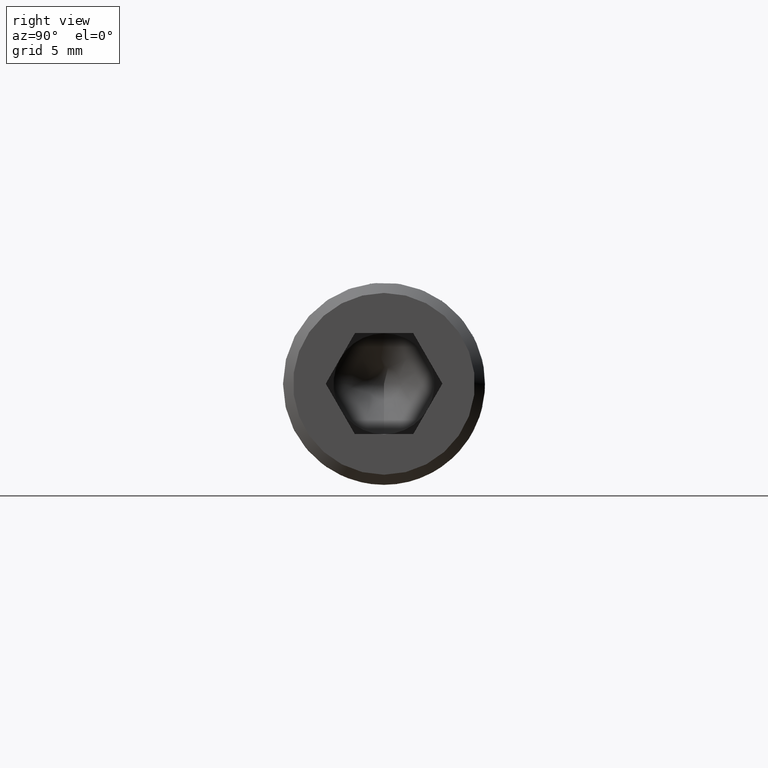
[diagram: clean part render]
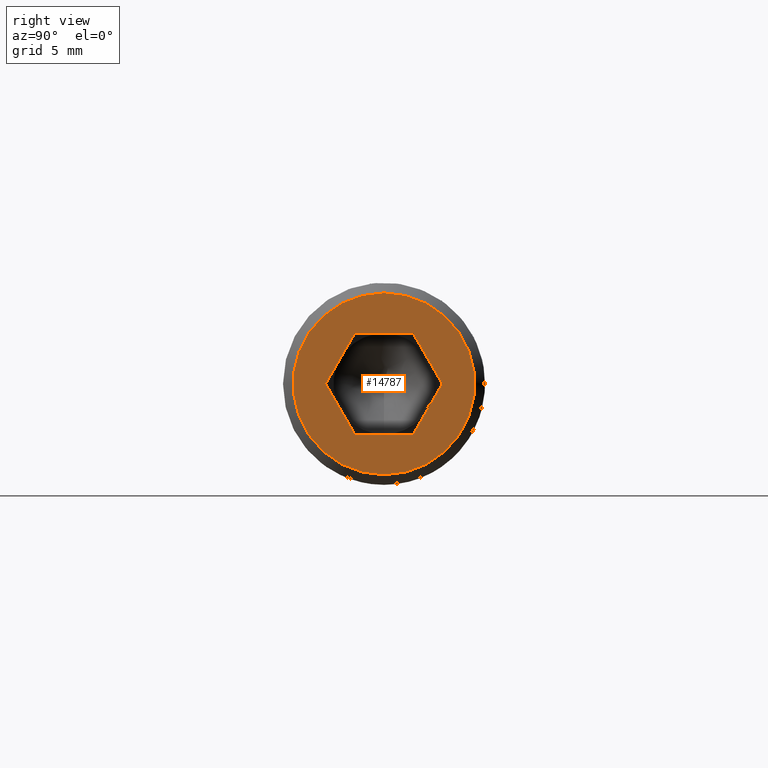
[diagram: same view with one face highlighted and labeled with its STEP entity id]
A machine part, right view. The second image highlights one B-rep face of the part: STEP entity #14787.
In plain terms, the highlighted planar face has unit normal (1, 0, 0).
Its self-contained STEP definition (entity closure, byte-faithful):
#785 = DIRECTION ( 'NONE',  ( 0.0000000000000000000, -1.000000000000000000, 0.0000000000000000000 ) ) ;
#929 = CARTESIAN_POINT ( 'NONE',  ( 40.00000000000000000, 3.464101615137748200, 1.598725048708560900E-017 ) ) ;
#981 = DIRECTION ( 'NONE',  ( 0.0000000000000000000, -0.4999999999999999400, 0.8660254037844387100 ) ) ;
#1231 = VERTEX_POINT ( 'NONE', #5456 ) ;
#1255 = ORIENTED_EDGE ( 'NONE', *, *, #11395, .T. ) ;
#1323 = DIRECTION ( 'NONE',  ( 0.0000000000000000000, 0.0000000000000000000, -1.000000000000000000 ) ) ;
#1381 = EDGE_CURVE ( 'NONE', #7408, #8131, #5137, .T. ) ;
#1775 = VECTOR ( 'NONE', #12625, 1000.000000000000000 ) ;
#2024 = ORIENTED_EDGE ( 'NONE', *, *, #1381, .F. ) ;
#2946 = DIRECTION ( 'NONE',  ( 1.000000000000000000, 0.0000000000000000000, 0.0000000000000000000 ) ) ;
#4369 = DIRECTION ( 'NONE',  ( 0.0000000000000000000, 0.0000000000000000000, -1.000000000000000000 ) ) ;
#4713 = EDGE_LOOP ( 'NONE', ( #15057, #9060, #13172, #5227, #2024, #16207 ) ) ;
#4728 = VECTOR ( 'NONE', #6281, 1000.000000000000100 ) ;
#5137 = LINE ( 'NONE', #5986, #1775 ) ;
#5227 = ORIENTED_EDGE ( 'NONE', *, *, #12962, .F. ) ;
#5456 = CARTESIAN_POINT ( 'NONE',  ( 40.00000000000000000, -1.732050807568883400, 3.000000000000000000 ) ) ;
#5770 = CARTESIAN_POINT ( 'NONE',  ( 40.00000000000000000, 0.0000000000000000000, 0.0000000000000000000 ) ) ;
#5986 = CARTESIAN_POINT ( 'NONE',  ( 40.00000000000000000, -1.732050807568885900, -2.999999999999999100 ) ) ;
#6196 = CARTESIAN_POINT ( 'NONE',  ( 40.00000000000000000, 1.732050807568871400, 3.000000000000000000 ) ) ;
#6281 = DIRECTION ( 'NONE',  ( 0.0000000000000000000, 0.4999999999999997800, -0.8660254037844387100 ) ) ;
#6371 = VECTOR ( 'NONE', #981, 1000.000000000000000 ) ;
#6392 = LINE ( 'NONE', #6196, #10439 ) ;
#6518 = CARTESIAN_POINT ( 'NONE',  ( 40.00000000000000000, -1.732050807568883400, 3.000000000000000000 ) ) ;
#6841 = AXIS2_PLACEMENT_3D ( 'NONE', #17493, #17440, #1323 ) ;
#6914 = CARTESIAN_POINT ( 'NONE',  ( 40.00000000000000000, 1.732050807568871000, -3.000000000000000000 ) ) ;
#7408 = VERTEX_POINT ( 'NONE', #7912 ) ;
#7445 = VERTEX_POINT ( 'NONE', #13819 ) ;
#7912 = CARTESIAN_POINT ( 'NONE',  ( 40.00000000000000000, -1.732050807568885900, -2.999999999999999100 ) ) ;
#8131 = VERTEX_POINT ( 'NONE', #8852 ) ;
#8168 = DIRECTION ( 'NONE',  ( 0.0000000000000000000, 0.4999999999999998900, 0.8660254037844386000 ) ) ;
#8269 = VECTOR ( 'NONE', #8168, 1000.000000000000200 ) ;
#8477 = EDGE_CURVE ( 'NONE', #10644, #7408, #14654, .T. ) ;
#8852 = CARTESIAN_POINT ( 'NONE',  ( 40.00000000000000000, 1.732050807568871000, -3.000000000000000000 ) ) ;
#9060 = ORIENTED_EDGE ( 'NONE', *, *, #15958, .F. ) ;
#9521 = EDGE_LOOP ( 'NONE', ( #1255 ) ) ;
#9911 = FACE_OUTER_BOUND ( 'NONE', #9521, .T. ) ;
#10221 = CARTESIAN_POINT ( 'NONE',  ( 40.00000000000000000, -3.464101615137761500, -2.168404344971008900E-016 ) ) ;
#10268 = CARTESIAN_POINT ( 'NONE',  ( 40.00000000000000000, -3.464101615137761900, -4.766870681724039000E-018 ) ) ;
#10439 = VECTOR ( 'NONE', #785, 1000.000000000000000 ) ;
#10644 = VERTEX_POINT ( 'NONE', #10221 ) ;
#11031 = VERTEX_POINT ( 'NONE', #11688 ) ;
#11395 = EDGE_CURVE ( 'NONE', #7445, #7445, #13591, .T. ) ;
#11482 = VECTOR ( 'NONE', #14808, 1000.000000000000100 ) ;
#11688 = CARTESIAN_POINT ( 'NONE',  ( 40.00000000000000000, 1.732050807568871400, 3.000000000000000000 ) ) ;
#12625 = DIRECTION ( 'NONE',  ( 0.0000000000000000000, 1.000000000000000000, -2.503857664561930900E-016 ) ) ;
#12962 = EDGE_CURVE ( 'NONE', #8131, #17008, #14193, .T. ) ;
#13172 = ORIENTED_EDGE ( 'NONE', *, *, #16971, .F. ) ;
#13591 = CIRCLE ( 'NONE', #6841, 5.399999999999996800 ) ;
#13819 = CARTESIAN_POINT ( 'NONE',  ( 40.00000000000000000, 0.0000000000000000000, -5.399999999999996800 ) ) ;
#14193 = LINE ( 'NONE', #6914, #8269 ) ;
#14450 = CARTESIAN_POINT ( 'NONE',  ( 40.00000000000000000, 3.464101615137748200, 1.598725048708560900E-017 ) ) ;
#14654 = LINE ( 'NONE', #10268, #4728 ) ;
#14787 = ADVANCED_FACE ( 'NONE', ( #16663, #9911 ), #16450, .T. ) ;
#14790 = AXIS2_PLACEMENT_3D ( 'NONE', #5770, #2946, #4369 ) ;
#14808 = DIRECTION ( 'NONE',  ( 0.0000000000000000000, -0.5000000000000002200, -0.8660254037844384900 ) ) ;
#15057 = ORIENTED_EDGE ( 'NONE', *, *, #16740, .F. ) ;
#15701 = LINE ( 'NONE', #14450, #6371 ) ;
#15958 = EDGE_CURVE ( 'NONE', #11031, #1231, #6392, .T. ) ;
#16207 = ORIENTED_EDGE ( 'NONE', *, *, #8477, .F. ) ;
#16311 = LINE ( 'NONE', #6518, #11482 ) ;
#16450 = PLANE ( 'NONE',  #14790 ) ;
#16663 = FACE_BOUND ( 'NONE', #4713, .T. ) ;
#16740 = EDGE_CURVE ( 'NONE', #1231, #10644, #16311, .T. ) ;
#16971 = EDGE_CURVE ( 'NONE', #17008, #11031, #15701, .T. ) ;
#17008 = VERTEX_POINT ( 'NONE', #929 ) ;
#17440 = DIRECTION ( 'NONE',  ( 1.000000000000000000, 0.0000000000000000000, 0.0000000000000000000 ) ) ;
#17493 = CARTESIAN_POINT ( 'NONE',  ( 40.00000000000000000, 0.0000000000000000000, 0.0000000000000000000 ) ) ;